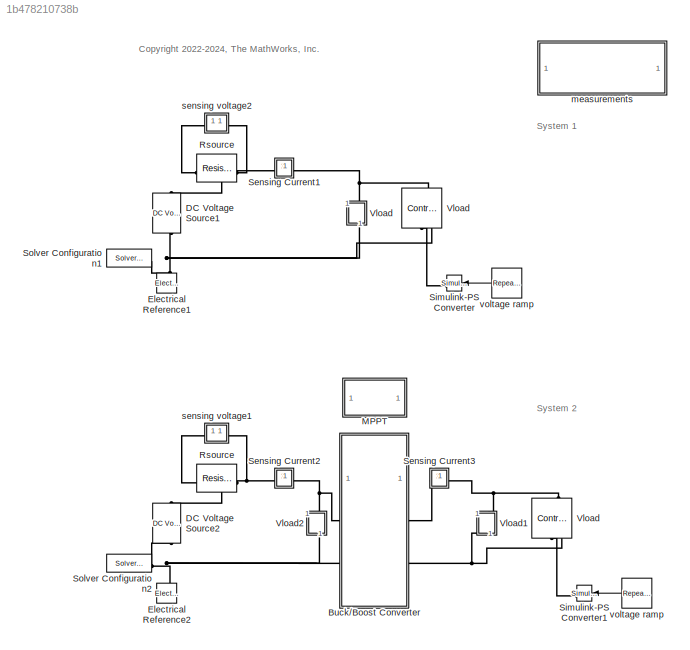
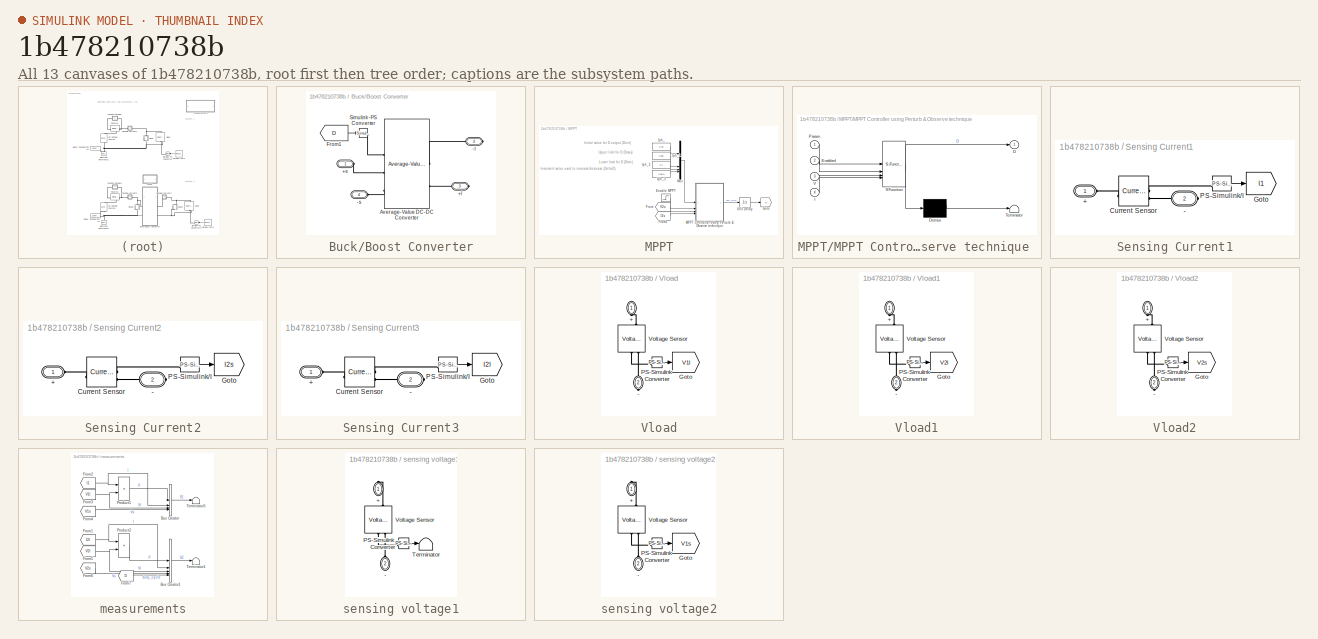
[diagram: thumbnail index - all 13 canvases of the model, root first then tree order]
MODEL slx_1b478210738b
KIND model
CONFIG AbsTol = auto
CONFIG EnableMultiTasking = off
CONFIG FixedStep = auto
CONFIG MaxStep = auto
CONFIG MinStep = auto
CONFIG RelTol = 1e-3
CONFIG SampleTimeConstraint = Unconstrained
CONFIG SolverName = VariableStepAuto
CONFIG StartTime = 0.0
CONFIG StopTime = 10.0
BLOCK [SubSystem] Buck//Boost Converter
BLOCK [PMIOPort] Buck//Boost Converter/+l
  Port = 3
  Side = Right
BLOCK [PMIOPort] Buck//Boost Converter/+s
  Side = Left
BLOCK [PMIOPort] Buck//Boost Converter/-l
  Port = 2
  Side = Right
BLOCK [PMIOPort] Buck//Boost Converter/-s
  Port = 4
  Side = Left
BLOCK [Reference] Buck//Boost Converter/Average-Value DC-DC Converter  REF=ee_lib/Semiconductors &
Converters/Converters/Average-Value DC-DC
Converter
  SourceBlock = ee_lib/Semiconductors &\nConverters/Converters/Average-Value DC-DC\nConverter
  SourceType = Average-Value DC-DC\nConverter
BLOCK [From] Buck//Boost Converter/From1
  GotoTag = D
  TagVisibility = global
BLOCK [Reference] Buck//Boost Converter/Simulink-PS Converter  REF=nesl_utility/Simulink-PS
Converter
  SourceBlock = nesl_utility/Simulink-PS\nConverter
  SourceType = Simulink-PS\nConverter
BLOCK [Reference] DC Voltage Source1  REF=fl_lib/Electrical/Electrical Sources/DC Voltage Source
  NameLocation = right
  SourceBlock = fl_lib/Electrical/Electrical Sources/DC Voltage Source
  SourceType = DC Voltage Source
BLOCK [Reference] DC Voltage Source2  REF=fl_lib/Electrical/Electrical Sources/DC Voltage Source
  NameLocation = right
  SourceBlock = fl_lib/Electrical/Electrical Sources/DC Voltage Source
  SourceType = DC Voltage Source
BLOCK [Reference] Electrical Reference1  REF=fl_lib/Electrical/Electrical Elements/Electrical Reference
  NameLocation = right
  SourceBlock = fl_lib/Electrical/Electrical Elements/Electrical Reference
  SourceType = Electrical Reference
BLOCK [Reference] Electrical Reference2  REF=fl_lib/Electrical/Electrical Elements/Electrical Reference
  NameLocation = right
  SourceBlock = fl_lib/Electrical/Electrical Elements/Electrical Reference
  SourceType = Electrical Reference
BLOCK [SubSystem] MPPT
BLOCK [Step] MPPT/Enable MPPT
  NameLocation = top
  SampleTime = Ts
  Time = 0.1
BLOCK [From] MPPT/From
  GotoTag = V2s
  TagVisibility = global
BLOCK [From] MPPT/From1
  GotoTag = I2s
  TagVisibility = global
BLOCK [Goto] MPPT/Goto
  GotoTag = D
  TagVisibility = global
BLOCK [Constant] MPPT/Iph_
  Value = 0.45
BLOCK [Constant] MPPT/Iph_1
  Value = 0.85
BLOCK [Constant] MPPT/Iph_2
  Value = 0.1
BLOCK [Constant] MPPT/Iph_3
  Value = 1.5e-3
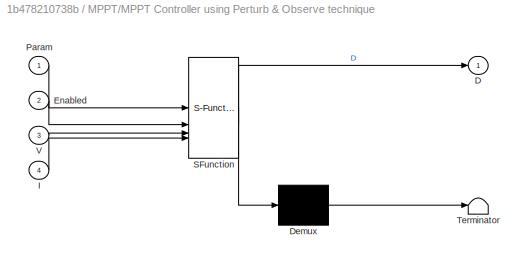
BLOCK [SubSystem] MPPT/MPPT Controller using Perturb & Observe technique 
  ErrorFcn = Stateflow.Translate.translate
  NameLocation = top
  PermitHierarchicalResolution = ExplicitOnly
  SFBlockType = MATLAB Function
  SystemSampleTime = Ts
  TreatAsGroupedWhenPropagatingVariantConditions = off
BLOCK [Demux] MPPT/MPPT Controller using Perturb & Observe technique / Demux 
  Outputs = 1
BLOCK [S-Function] MPPT/MPPT Controller using Perturb & Observe technique / SFunction 
  EnableBusSupport = on
  FunctionName = sf_sfun
  PortCounts = [4 2]
  SFcnIsStateOwnerBlock = off
  SFunctionDeploymentMode = off
  Tag = Stateflow S-Function 4
BLOCK [Terminator] MPPT/MPPT Controller using Perturb & Observe technique / Terminator 
BLOCK [Outport] MPPT/MPPT Controller using Perturb & Observe technique /D
  VectorParamsAs1DForOutWhenUnconnected = off
BLOCK [Inport] MPPT/MPPT Controller using Perturb & Observe technique /Enabled
  Port = 2
BLOCK [Inport] MPPT/MPPT Controller using Perturb & Observe technique /I
  Port = 4
BLOCK [Inport] MPPT/MPPT Controller using Perturb & Observe technique /Param
BLOCK [Inport] MPPT/MPPT Controller using Perturb & Observe technique /V
  Port = 3
BLOCK [Mux] MPPT/Mux
  DisplayOption = bar
BLOCK [UnitDelay] MPPT/Unit Delay
  HasFrameUpgradeWarning = on
  InitialCondition = 0.5
  SampleTime = -1
BLOCK [Reference] Rsource  REF=fl_lib/Electrical/Electrical Elements/Resistor
  NameLocation = top
  SourceBlock = fl_lib/Electrical/Electrical Elements/Resistor
  SourceType = Resistor
BLOCK [Reference] Rsource   REF=fl_lib/Electrical/Electrical Elements/Resistor
  NameLocation = top
  SourceBlock = fl_lib/Electrical/Electrical Elements/Resistor
  SourceType = Resistor
BLOCK [SubSystem] Sensing Current1
BLOCK [PMIOPort] Sensing Current1/+
  Side = Left
BLOCK [PMIOPort] Sensing Current1/-
  Port = 2
  Side = Right
BLOCK [Reference] Sensing Current1/Current Sensor  REF=fl_lib/Electrical/Electrical Sensors/Current Sensor
  SourceBlock = fl_lib/Electrical/Electrical Sensors/Current Sensor
  SourceType = Current Sensor
BLOCK [Goto] Sensing Current1/Goto
  GotoTag = I1
  TagVisibility = global
BLOCK [Reference] Sensing Current1/PS-Simulink//I  REF=nesl_utility/PS-Simulink
Converter
  SourceBlock = nesl_utility/PS-Simulink\nConverter
  SourceType = PS-Simulink\nConverter
BLOCK [SubSystem] Sensing Current2
BLOCK [PMIOPort] Sensing Current2/+
  Side = Left
BLOCK [PMIOPort] Sensing Current2/-
  Port = 2
  Side = Right
BLOCK [Reference] Sensing Current2/Current Sensor  REF=fl_lib/Electrical/Electrical Sensors/Current Sensor
  SourceBlock = fl_lib/Electrical/Electrical Sensors/Current Sensor
  SourceType = Current Sensor
BLOCK [Goto] Sensing Current2/Goto
  GotoTag = I2s
  TagVisibility = global
BLOCK [Reference] Sensing Current2/PS-Simulink//I  REF=nesl_utility/PS-Simulink
Converter
  SourceBlock = nesl_utility/PS-Simulink\nConverter
  SourceType = PS-Simulink\nConverter
BLOCK [SubSystem] Sensing Current3
BLOCK [PMIOPort] Sensing Current3/+
  Side = Left
BLOCK [PMIOPort] Sensing Current3/-
  Port = 2
  Side = Right
BLOCK [Reference] Sensing Current3/Current Sensor  REF=fl_lib/Electrical/Electrical Sensors/Current Sensor
  SourceBlock = fl_lib/Electrical/Electrical Sensors/Current Sensor
  SourceType = Current Sensor
BLOCK [Goto] Sensing Current3/Goto
  GotoTag = I2l
  TagVisibility = global
BLOCK [Reference] Sensing Current3/PS-Simulink//I  REF=nesl_utility/PS-Simulink
Converter
  SourceBlock = nesl_utility/PS-Simulink\nConverter
  SourceType = PS-Simulink\nConverter
BLOCK [Reference] Simulink-PS Converter  REF=nesl_utility/Simulink-PS
Converter
  NameLocation = top
  SourceBlock = nesl_utility/Simulink-PS\nConverter
  SourceType = Simulink-PS\nConverter
BLOCK [Reference] Simulink-PS Converter1  REF=nesl_utility/Simulink-PS
Converter
  NameLocation = top
  SourceBlock = nesl_utility/Simulink-PS\nConverter
  SourceType = Simulink-PS\nConverter
BLOCK [Reference] Solver Configuration1  REF=nesl_utility/Solver
Configuration
  SourceBlock = nesl_utility/Solver\nConfiguration
  SourceType = Solver\nConfiguration
BLOCK [Reference] Solver Configuration2  REF=nesl_utility/Solver
Configuration
  SourceBlock = nesl_utility/Solver\nConfiguration
  SourceType = Solver\nConfiguration
BLOCK [SubSystem] Vload
  NameLocation = left
BLOCK [Reference] Vload   REF=fl_lib/Electrical/Electrical Sources/Controlled Voltage
Source
  NameLocation = right
  SourceBlock = fl_lib/Electrical/Electrical Sources/Controlled Voltage\nSource
  SourceType = Controlled Voltage\nSource
BLOCK [Reference] Vload    REF=fl_lib/Electrical/Electrical Sources/Controlled Voltage
Source
  NameLocation = right
  SourceBlock = fl_lib/Electrical/Electrical Sources/Controlled Voltage\nSource
  SourceType = Controlled Voltage\nSource
BLOCK [PMIOPort] Vload/+
  NameLocation = left
  Side = Left
BLOCK [PMIOPort] Vload/-
  NameLocation = left
  Port = 2
  Side = Right
BLOCK [Goto] Vload/Goto
  GotoTag = V1l
  TagVisibility = global
BLOCK [Reference] Vload/PS-Simulink Converter  REF=nesl_utility/PS-Simulink
Converter
  SourceBlock = nesl_utility/PS-Simulink\nConverter
  SourceType = PS-Simulink\nConverter
BLOCK [Reference] Vload/Voltage Sensor  REF=fl_lib/Electrical/Electrical Sensors/Voltage Sensor
  NameLocation = right
  SourceBlock = fl_lib/Electrical/Electrical Sensors/Voltage Sensor
  SourceType = Voltage Sensor
BLOCK [SubSystem] Vload1
  NameLocation = left
BLOCK [PMIOPort] Vload1/+
  NameLocation = left
  Side = Left
BLOCK [PMIOPort] Vload1/-
  NameLocation = left
  Port = 2
  Side = Right
BLOCK [Goto] Vload1/Goto
  GotoTag = V2l
  TagVisibility = global
BLOCK [Reference] Vload1/PS-Simulink Converter  REF=nesl_utility/PS-Simulink
Converter
  SourceBlock = nesl_utility/PS-Simulink\nConverter
  SourceType = PS-Simulink\nConverter
BLOCK [Reference] Vload1/Voltage Sensor  REF=fl_lib/Electrical/Electrical Sensors/Voltage Sensor
  NameLocation = right
  SourceBlock = fl_lib/Electrical/Electrical Sensors/Voltage Sensor
  SourceType = Voltage Sensor
BLOCK [SubSystem] Vload2
  NameLocation = left
BLOCK [PMIOPort] Vload2/+
  NameLocation = left
  Side = Left
BLOCK [PMIOPort] Vload2/-
  NameLocation = left
  Port = 2
  Side = Right
BLOCK [Goto] Vload2/Goto
  GotoTag = V2s
  TagVisibility = global
BLOCK [Reference] Vload2/PS-Simulink Converter  REF=nesl_utility/PS-Simulink
Converter
  SourceBlock = nesl_utility/PS-Simulink\nConverter
  SourceType = PS-Simulink\nConverter
BLOCK [Reference] Vload2/Voltage Sensor  REF=fl_lib/Electrical/Electrical Sensors/Voltage Sensor
  NameLocation = right
  SourceBlock = fl_lib/Electrical/Electrical Sensors/Voltage Sensor
  SourceType = Voltage Sensor
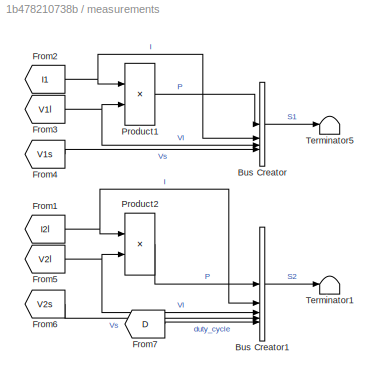
BLOCK [SubSystem] measurements
BLOCK [BusCreator] measurements/Bus Creator
  DisplayOption = bar
  InheritFromInputs = on
  Inputs = 4
BLOCK [BusCreator] measurements/Bus Creator1
  DisplayOption = bar
  InheritFromInputs = on
  Inputs = 5
BLOCK [From] measurements/From1
  GotoTag = I2l
  TagVisibility = global
BLOCK [From] measurements/From2
  GotoTag = I1
  TagVisibility = global
BLOCK [From] measurements/From3
  GotoTag = V1l
  TagVisibility = global
BLOCK [From] measurements/From4
  GotoTag = V1s
  TagVisibility = global
BLOCK [From] measurements/From5
  GotoTag = V2l
  TagVisibility = global
BLOCK [From] measurements/From6
  GotoTag = V2s
  TagVisibility = global
BLOCK [From] measurements/From7
  GotoTag = D
  TagVisibility = global
BLOCK [Product] measurements/Product1
BLOCK [Product] measurements/Product2
BLOCK [Terminator] measurements/Terminator1
BLOCK [Terminator] measurements/Terminator5
BLOCK [SubSystem] sensing voltage1
  NameLocation = top
BLOCK [PMIOPort] sensing voltage1/+
  NameLocation = left
  Side = Right
BLOCK [PMIOPort] sensing voltage1/-
  NameLocation = left
  Port = 2
  Side = Left
BLOCK [Reference] sensing voltage1/PS-Simulink Converter  REF=nesl_utility/PS-Simulink
Converter
  SourceBlock = nesl_utility/PS-Simulink\nConverter
  SourceType = PS-Simulink\nConverter
BLOCK [Terminator] sensing voltage1/Terminator
BLOCK [Reference] sensing voltage1/Voltage Sensor  REF=fl_lib/Electrical/Electrical Sensors/Voltage Sensor
  NameLocation = right
  SourceBlock = fl_lib/Electrical/Electrical Sensors/Voltage Sensor
  SourceType = Voltage Sensor
BLOCK [SubSystem] sensing voltage2
  NameLocation = top
BLOCK [PMIOPort] sensing voltage2/+
  NameLocation = left
  Side = Right
BLOCK [PMIOPort] sensing voltage2/-
  NameLocation = left
  Port = 2
  Side = Left
BLOCK [Goto] sensing voltage2/Goto
  GotoTag = V1s
  TagVisibility = global
BLOCK [Reference] sensing voltage2/PS-Simulink Converter  REF=nesl_utility/PS-Simulink
Converter
  SourceBlock = nesl_utility/PS-Simulink\nConverter
  SourceType = PS-Simulink\nConverter
BLOCK [Reference] sensing voltage2/Voltage Sensor  REF=fl_lib/Electrical/Electrical Sensors/Voltage Sensor
  NameLocation = right
  SourceBlock = fl_lib/Electrical/Electrical Sensors/Voltage Sensor
  SourceType = Voltage Sensor
BLOCK [Reference] voltage ramp  REF=simulink/Sources/Repeating
Sequence
Interpolated
  NameLocation = top
  SourceBlock = simulink/Sources/Repeating\nSequence\nInterpolated
  SourceType = Repeating Sequence Interpolated
BLOCK [Reference] voltage ramp   REF=simulink/Sources/Repeating
Sequence
Interpolated
  NameLocation = top
  SourceBlock = simulink/Sources/Repeating\nSequence\nInterpolated
  SourceType = Repeating Sequence Interpolated
ANNOTATION (root): <copyright redacted>
ANNOTATION (root): System 1
ANNOTATION (root): System 2
ANNOTATION MPPT: Increment value used to increase/decrease (DeltaD)
ANNOTATION MPPT: Initial value for D output (Dinit)
ANNOTATION MPPT: Lower limit for D (Dmin)
ANNOTATION MPPT: Upper limit for D (Dmax)
LINE Buck//Boost Converter/From1:1 -> Buck//Boost Converter/Simulink-PS Converter:1
LINE MPPT/Enable MPPT:1 -> MPPT/MPPT Controller using Perturb & Observe technique :2
LINE MPPT/From1:1 -> MPPT/MPPT Controller using Perturb & Observe technique :4
LINE MPPT/From:1 -> MPPT/MPPT Controller using Perturb & Observe technique :3
LINE MPPT/Iph_1:1 -> MPPT/Mux:2
LINE MPPT/Iph_2:1 -> MPPT/Mux:3
LINE MPPT/Iph_3:1 -> MPPT/Mux:4
LINE MPPT/Iph_:1 -> MPPT/Mux:1
LINE MPPT/MPPT Controller using Perturb & Observe technique :1 -> MPPT/Unit Delay:1
LINE MPPT/Mux:1 -> MPPT/MPPT Controller using Perturb & Observe technique :1
LINE MPPT/Unit Delay:1 -> MPPT/Goto:1
LINE Sensing Current1/PS-Simulink//I:1 -> Sensing Current1/Goto:1
LINE Sensing Current2/PS-Simulink//I:1 -> Sensing Current2/Goto:1
LINE Sensing Current3/PS-Simulink//I:1 -> Sensing Current3/Goto:1
LINE Vload/PS-Simulink Converter:1 -> Vload/Goto:1
LINE Vload1/PS-Simulink Converter:1 -> Vload1/Goto:1
LINE Vload2/PS-Simulink Converter:1 -> Vload2/Goto:1
LINE measurements/Bus Creator1:1 -> measurements/Terminator1:1
LINE measurements/Bus Creator:1 -> measurements/Terminator5:1
NET measurements/From1:1 -> measurements/Bus Creator1:2, measurements/Product2:1
NET measurements/From2:1 -> measurements/Bus Creator:2, measurements/Product1:1
NET measurements/From3:1 -> measurements/Bus Creator:3, measurements/Product1:2
LINE measurements/From4:1 -> measurements/Bus Creator:4
NET measurements/From5:1 -> measurements/Bus Creator1:3, measurements/Product2:2
LINE measurements/From6:1 -> measurements/Bus Creator1:4
LINE measurements/From7:1 -> measurements/Bus Creator1:5
LINE measurements/Product1:1 -> measurements/Bus Creator:1
LINE measurements/Product2:1 -> measurements/Bus Creator1:1
LINE sensing voltage1/PS-Simulink Converter:1 -> sensing voltage1/Terminator:1
LINE sensing voltage2/PS-Simulink Converter:1 -> sensing voltage2/Goto:1
LINE voltage ramp :1 -> Simulink-PS Converter1:1
LINE voltage ramp:1 -> Simulink-PS Converter:1
PLINE Buck//Boost Converter/+l:RConn1 -- Buck//Boost Converter/Average-Value DC-DC Converter:RConn2
PLINE Buck//Boost Converter/+s:RConn1 -- Buck//Boost Converter/Average-Value DC-DC Converter:LConn2
PLINE Buck//Boost Converter/-l:RConn1 -- Buck//Boost Converter/Average-Value DC-DC Converter:RConn1
PLINE Buck//Boost Converter/-s:RConn1 -- Buck//Boost Converter/Average-Value DC-DC Converter:LConn3
PLINE Buck//Boost Converter/Average-Value DC-DC Converter:LConn1 -- Buck//Boost Converter/Simulink-PS Converter:RConn1
PNET net1: Buck//Boost Converter:LConn1 -- Sensing Current2:RConn1 -- Vload2:LConn1
PNET net2: Buck//Boost Converter:LConn2 -- DC Voltage Source2:RConn1 -- Electrical Reference2:LConn1 -- Solver Configuration2:RConn1 -- Vload2:RConn1
PLINE Buck//Boost Converter:RConn1 -- Sensing Current3:LConn1
PNET net3: Buck//Boost Converter:RConn2 -- Vload  :RConn2 -- Vload1:RConn1
PNET net4: DC Voltage Source1:LConn1 -- Rsource:RConn1 -- sensing voltage2:RConn1
PNET net5: DC Voltage Source1:RConn1 -- Electrical Reference1:LConn1 -- Solver Configuration1:RConn1 -- Vload :RConn2 -- Vload:RConn1
PNET net6: DC Voltage Source2:LConn1 -- Rsource :RConn1 -- sensing voltage1:RConn1
PNET net7: Rsource :LConn1 -- Sensing Current2:LConn1 -- sensing voltage1:LConn1
PNET net8: Rsource:LConn1 -- Sensing Current1:LConn1 -- sensing voltage2:LConn1
PLINE Sensing Current1/+:RConn1 -- Sensing Current1/Current Sensor:LConn1
PLINE Sensing Current1/-:RConn1 -- Sensing Current1/Current Sensor:RConn2
PLINE Sensing Current1/Current Sensor:RConn1 -- Sensing Current1/PS-Simulink//I:LConn1
PNET net9: Sensing Current1:RConn1 -- Vload :LConn1 -- Vload:LConn1
PLINE Sensing Current2/+:RConn1 -- Sensing Current2/Current Sensor:LConn1
PLINE Sensing Current2/-:RConn1 -- Sensing Current2/Current Sensor:RConn2
PLINE Sensing Current2/Current Sensor:RConn1 -- Sensing Current2/PS-Simulink//I:LConn1
PLINE Sensing Current3/+:RConn1 -- Sensing Current3/Current Sensor:LConn1
PLINE Sensing Current3/-:RConn1 -- Sensing Current3/Current Sensor:RConn2
PLINE Sensing Current3/Current Sensor:RConn1 -- Sensing Current3/PS-Simulink//I:LConn1
PNET net10: Sensing Current3:RConn1 -- Vload  :LConn1 -- Vload1:LConn1
PLINE Simulink-PS Converter1:RConn1 -- Vload  :RConn1
PLINE Simulink-PS Converter:RConn1 -- Vload :RConn1
PLINE Vload/+:RConn1 -- Vload/Voltage Sensor:LConn1
PLINE Vload/-:RConn1 -- Vload/Voltage Sensor:RConn2
PLINE Vload/PS-Simulink Converter:LConn1 -- Vload/Voltage Sensor:RConn1
PLINE Vload1/+:RConn1 -- Vload1/Voltage Sensor:LConn1
PLINE Vload1/-:RConn1 -- Vload1/Voltage Sensor:RConn2
PLINE Vload1/PS-Simulink Converter:LConn1 -- Vload1/Voltage Sensor:RConn1
PLINE Vload2/+:RConn1 -- Vload2/Voltage Sensor:LConn1
PLINE Vload2/-:RConn1 -- Vload2/Voltage Sensor:RConn2
PLINE Vload2/PS-Simulink Converter:LConn1 -- Vload2/Voltage Sensor:RConn1
PLINE sensing voltage1/+:RConn1 -- sensing voltage1/Voltage Sensor:LConn1
PLINE sensing voltage1/-:RConn1 -- sensing voltage1/Voltage Sensor:RConn2
PLINE sensing voltage1/PS-Simulink Converter:LConn1 -- sensing voltage1/Voltage Sensor:RConn1
PLINE sensing voltage2/+:RConn1 -- sensing voltage2/Voltage Sensor:LConn1
PLINE sensing voltage2/-:RConn1 -- sensing voltage2/Voltage Sensor:RConn2
PLINE sensing voltage2/PS-Simulink Converter:LConn1 -- sensing voltage2/Voltage Sensor:RConn1
note: NET lines group one-source signal fan-out (src -> all destinations, sorted); 1:1 wires keep LINE; PNET lines group multi-terminal physical nets as a canonical sorted terminal list (undirected conserving connections); 2-terminal nets keep the pairwise PLINE form
CHART MPPT/MPPT Controller
using Perturb 
& Observe technique
  states=1 transitions=1
  STATE_LABEL 'eML_blk_kernel()'
  STATE_LABEL 'SCRIPT:\nfunction D  = PandO(Param, Enabled, V, I)\n\n% MPPT controller based on the Perturb & Observe algorithm.\n\n% D output = Duty cycle of the boost converter (value between 0 and 1)\n%\n% Enabled input = 1 to enable the MPPT controller\n% V input = PV array terminal voltage (V)\n% I input = PV array current (A)\n%\n% Param input:\nDinit = Param(1);  %Initial value for D output\nDmax = Param(2);   %Maximu...<+722ch>'
CHART  states=0 transitions=0
